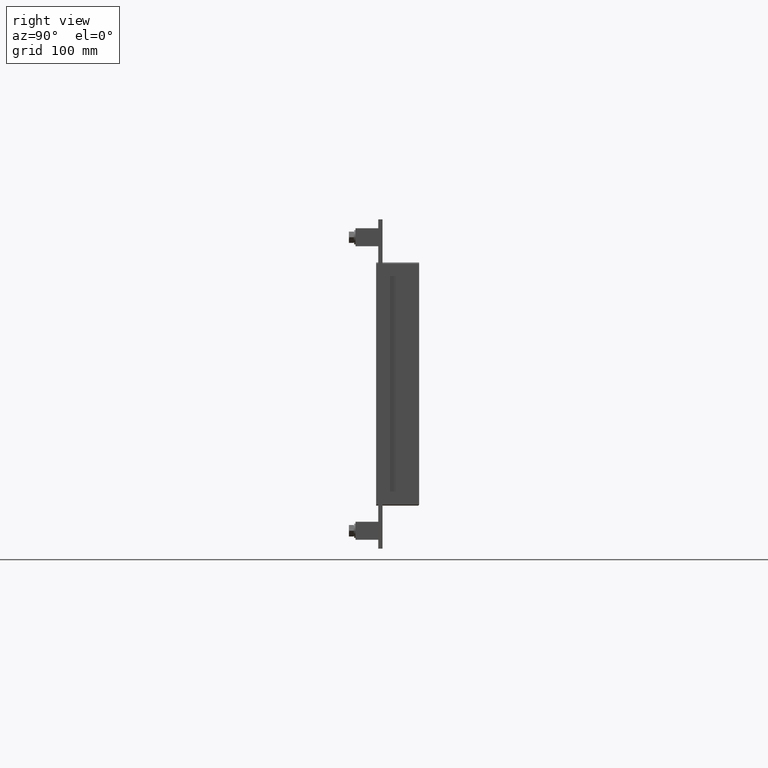
[diagram: clean part render]
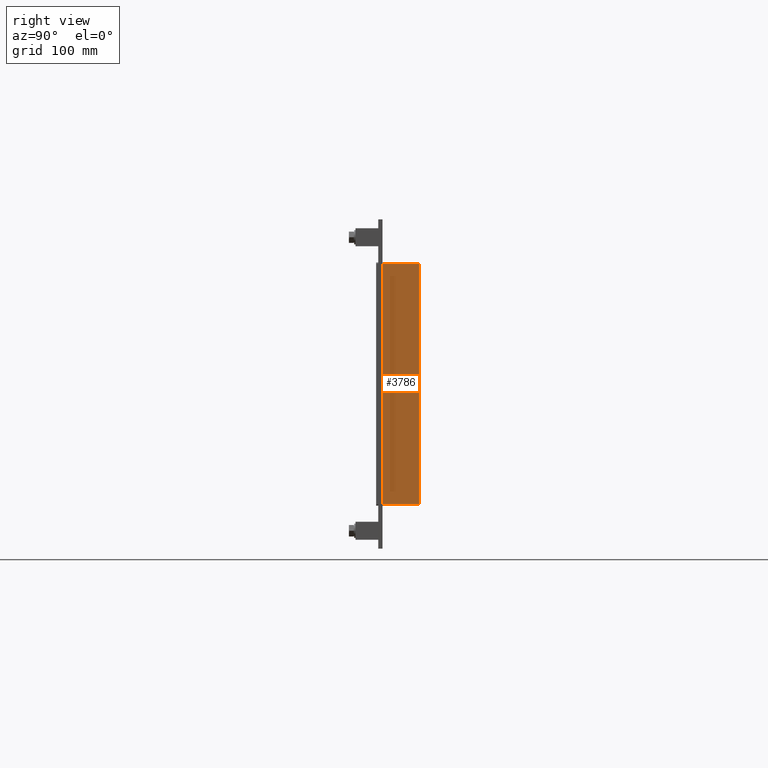
[diagram: same view with one face highlighted and labeled with its STEP entity id]
A machine part, right view. The second image highlights one B-rep face of the part: STEP entity #3786.
In plain terms, the highlighted planar face has unit normal (1, 0, 0).
Its self-contained STEP definition (entity closure, byte-faithful):
#1437=CARTESIAN_POINT('',(392.50000000000006,57.0,-167.5));
#1438=VERTEX_POINT('',#1437);
#1470=CARTESIAN_POINT('',(392.50000000000006,57.0,167.50000000000003));
#1471=VERTEX_POINT('',#1470);
#1479=CARTESIAN_POINT('',(392.50000000000006,57.0,167.50000000000003));
#1480=DIRECTION('',(0.0,0.0,-1.0));
#1481=VECTOR('',#1480,335.0);
#1482=LINE('',#1479,#1481);
#1483=EDGE_CURVE('',#1471,#1438,#1482,.T.);
#3209=CARTESIAN_POINT('',(392.50000000000006,6.000000000000001,-167.5));
#3210=VERTEX_POINT('',#3209);
#3218=CARTESIAN_POINT('',(392.50000000000006,6.000000000000001,167.50000000000003));
#3219=VERTEX_POINT('',#3218);
#3220=CARTESIAN_POINT('',(392.50000000000006,6.000000000000001,167.50000000000006));
#3221=DIRECTION('',(0.0,0.0,-1.0));
#3222=VECTOR('',#3221,335.00000000000006);
#3223=LINE('',#3220,#3222);
#3224=EDGE_CURVE('',#3219,#3210,#3223,.T.);
#3566=CARTESIAN_POINT('',(392.50000000000006,57.0,-167.5));
#3567=DIRECTION('',(0.0,-1.0,0.0));
#3568=VECTOR('',#3567,51.0);
#3569=LINE('',#3566,#3568);
#3570=EDGE_CURVE('',#1438,#3210,#3569,.T.);
#3764=CARTESIAN_POINT('',(392.50000000000006,6.000000000000001,167.50000000000003));
#3765=DIRECTION('',(0.0,1.0,0.0));
#3766=VECTOR('',#3765,51.0);
#3767=LINE('',#3764,#3766);
#3768=EDGE_CURVE('',#3219,#1471,#3767,.T.);
#3775=CARTESIAN_POINT('',(392.50000000000006,0.0,169.50000000000003));
#3776=DIRECTION('',(1.0,0.0,0.0));
#3777=DIRECTION('',(0.0,0.0,-1.0));
#3778=AXIS2_PLACEMENT_3D('',#3775,#3776,#3777);
#3779=PLANE('',#3778);
#3780=ORIENTED_EDGE('',*,*,#3224,.T.);
#3781=ORIENTED_EDGE('',*,*,#3570,.F.);
#3782=ORIENTED_EDGE('',*,*,#1483,.F.);
#3783=ORIENTED_EDGE('',*,*,#3768,.F.);
#3784=EDGE_LOOP('',(#3780,#3781,#3782,#3783));
#3785=FACE_OUTER_BOUND('',#3784,.T.);
#3786=ADVANCED_FACE('',(#3785),#3779,.T.);